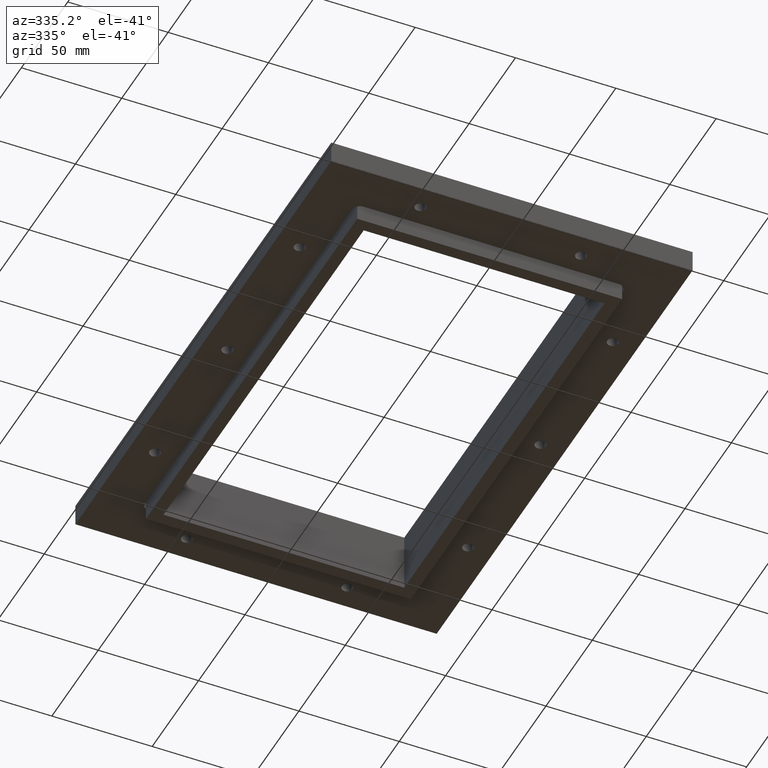
[diagram: clean part render]
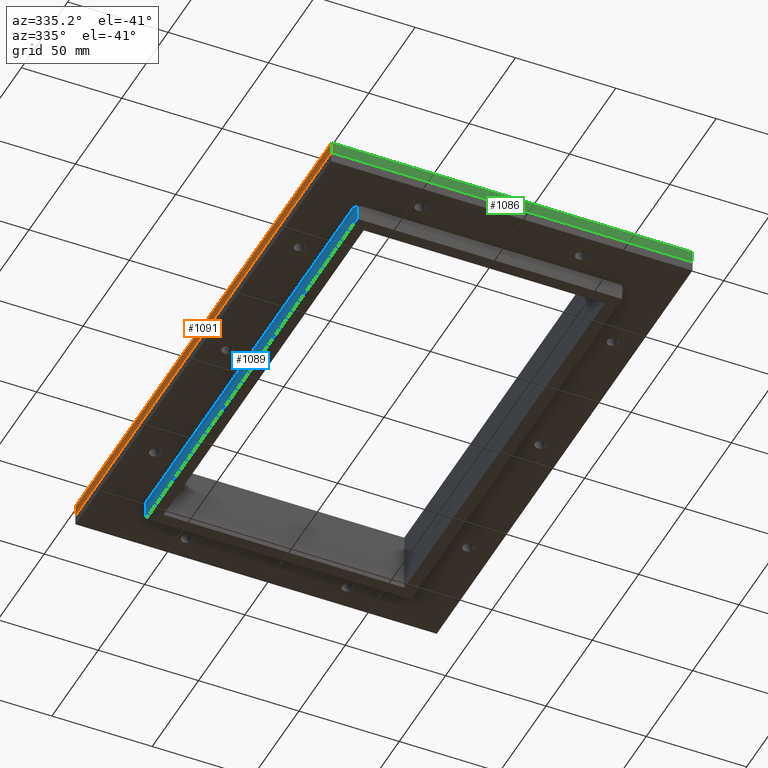
[diagram: same view with three faces highlighted in distinct colors, each labeled with its STEP entity id]
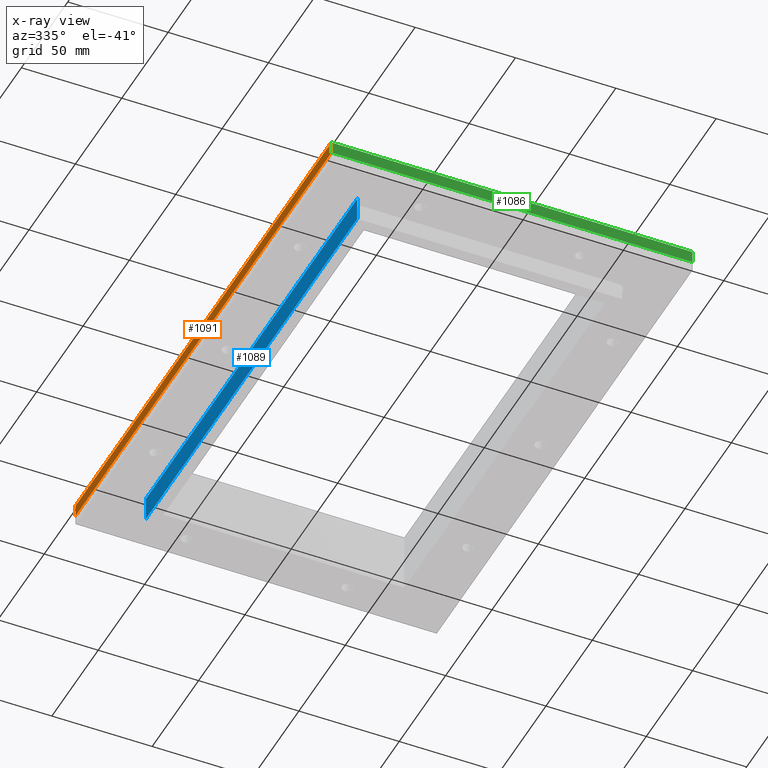
[diagram: x-ray of the same camera — body ghosted, the three highlighted faces saturated]
A machine part, auxiliary view with three faces highlighted in distinct colors.
The next image is the same camera in x-ray (body ghosted, the three faces saturated) — at least one of them is partly hidden behind the body in this view.
Their STEP definitions:

[orange] entity #1091 — the highlighted planar face has unit normal (-1, 0, -0).
#105=PLANE('',#1186);
#145=FACE_OUTER_BOUND('',#223,.T.);
#223=EDGE_LOOP('',(#899,#900,#901,#902));
#291=LINE('',#1628,#387);
#320=LINE('',#1685,#416);
#323=LINE('',#1690,#419);
#325=LINE('',#1693,#421);
#387=VECTOR('',#1328,10.);
#416=VECTOR('',#1377,10.);
#419=VECTOR('',#1382,10.);
#421=VECTOR('',#1386,10.);
#541=VERTEX_POINT('',#1625);
#542=VERTEX_POINT('',#1627);
#560=VERTEX_POINT('',#1684);
#561=VERTEX_POINT('',#1689);
#647=EDGE_CURVE('',#542,#541,#291,.T.);
#676=EDGE_CURVE('',#560,#541,#320,.T.);
#679=EDGE_CURVE('',#561,#560,#323,.T.);
#681=EDGE_CURVE('',#561,#542,#325,.T.);
#899=ORIENTED_EDGE('',*,*,#647,.T.);
#900=ORIENTED_EDGE('',*,*,#676,.F.);
#901=ORIENTED_EDGE('',*,*,#679,.F.);
#902=ORIENTED_EDGE('',*,*,#681,.T.);
#1091=ADVANCED_FACE('',(#145),#105,.T.);
#1186=AXIS2_PLACEMENT_3D('',#1701,#1396,#1397);
#1328=DIRECTION('',(2.96059473233375E-15,-2.96059473233375E-15,-1.));
#1377=DIRECTION('',(1.64477485129653E-16,1.,0.));
#1382=DIRECTION('',(2.96059473233375E-15,2.96059473233375E-15,-1.));
#1386=DIRECTION('',(1.64477485129653E-16,1.,0.));
#1396=DIRECTION('center_axis',(-1.,1.64477485129653E-16,-2.96059473233375E-15));
#1397=DIRECTION('ref_axis',(2.96059473233375E-15,0.,-1.));
#1625=CARTESIAN_POINT('',(-89.9999999999999,138.,-3.));
#1627=CARTESIAN_POINT('',(-90.,138.,3.));
#1628=CARTESIAN_POINT('',(-90.,138.,1.49999999999987));
#1684=CARTESIAN_POINT('',(-90.,-138.,-3.));
#1685=CARTESIAN_POINT('',(-89.9999999999999,108.,-3.));
#1689=CARTESIAN_POINT('',(-90.,-138.,3.));
#1690=CARTESIAN_POINT('',(-90.,-138.,1.49999999999955));
#1693=CARTESIAN_POINT('',(-90.,108.,3.));
#1701=CARTESIAN_POINT('Origin',(-90.,108.,3.));

[blue] entity #1089 — the highlighted planar face has unit normal (-1, 0, 0).
#103=PLANE('',#1184);
#143=FACE_OUTER_BOUND('',#221,.T.);
#221=EDGE_LOOP('',(#891,#892,#893,#894));
#287=LINE('',#1619,#383);
#315=LINE('',#1676,#411);
#318=LINE('',#1681,#414);
#322=LINE('',#1687,#418);
#383=VECTOR('',#1322,10.);
#411=VECTOR('',#1368,10.);
#414=VECTOR('',#1373,10.);
#418=VECTOR('',#1379,10.);
#537=VERTEX_POINT('',#1616);
#538=VERTEX_POINT('',#1618);
#558=VERTEX_POINT('',#1675);
#559=VERTEX_POINT('',#1680);
#643=EDGE_CURVE('',#538,#537,#287,.T.);
#671=EDGE_CURVE('',#558,#537,#315,.T.);
#674=EDGE_CURVE('',#559,#558,#318,.T.);
#678=EDGE_CURVE('',#559,#538,#322,.T.);
#891=ORIENTED_EDGE('',*,*,#643,.T.);
#892=ORIENTED_EDGE('',*,*,#671,.F.);
#893=ORIENTED_EDGE('',*,*,#674,.F.);
#894=ORIENTED_EDGE('',*,*,#678,.T.);
#1089=ADVANCED_FACE('',(#143),#103,.T.);
#1184=AXIS2_PLACEMENT_3D('',#1699,#1392,#1393);
#1322=DIRECTION('',(0.,0.,-1.));
#1368=DIRECTION('',(1.64477485129653E-16,1.,0.));
#1373=DIRECTION('',(0.,0.,-1.));
#1379=DIRECTION('',(1.64477485129653E-16,1.,0.));
#1392=DIRECTION('center_axis',(-1.,1.64477485129653E-16,0.));
#1393=DIRECTION('ref_axis',(0.,0.,-1.));
#1616=CARTESIAN_POINT('',(-65.9999999999999,114.,-15.));
#1618=CARTESIAN_POINT('',(-65.9999999999999,114.,-3.));
#1619=CARTESIAN_POINT('',(-65.9999999999999,114.,-1.5));
#1675=CARTESIAN_POINT('',(-66.,-114.,-15.));
#1676=CARTESIAN_POINT('',(-65.9999999999999,108.,-15.));
#1680=CARTESIAN_POINT('',(-66.,-114.,-3.));
#1681=CARTESIAN_POINT('',(-66.,-114.,-1.5));
#1687=CARTESIAN_POINT('',(-65.9999999999999,108.,-3.));
#1699=CARTESIAN_POINT('Origin',(-65.9999999999999,108.,-3.));

[green] entity #1086 — the highlighted planar face has unit normal (0, -1, -0).
#100=PLANE('',#1181);
#140=FACE_OUTER_BOUND('',#207,.T.);
#207=EDGE_LOOP('',(#865,#866,#867,#868));
#303=LINE('',#1654,#399);
#321=LINE('',#1686,#417);
#323=LINE('',#1690,#419);
#324=LINE('',#1691,#420);
#399=VECTOR('',#1348,10.);
#417=VECTOR('',#1378,10.);
#419=VECTOR('',#1382,10.);
#420=VECTOR('',#1383,10.);
#551=VERTEX_POINT('',#1652);
#552=VERTEX_POINT('',#1653);
#560=VERTEX_POINT('',#1684);
#561=VERTEX_POINT('',#1689);
#659=EDGE_CURVE('',#551,#552,#303,.T.);
#677=EDGE_CURVE('',#560,#552,#321,.T.);
#679=EDGE_CURVE('',#561,#560,#323,.T.);
#680=EDGE_CURVE('',#561,#551,#324,.T.);
#865=ORIENTED_EDGE('',*,*,#679,.T.);
#866=ORIENTED_EDGE('',*,*,#677,.T.);
#867=ORIENTED_EDGE('',*,*,#659,.F.);
#868=ORIENTED_EDGE('',*,*,#680,.F.);
#1086=ADVANCED_FACE('',(#140),#100,.T.);
#1181=AXIS2_PLACEMENT_3D('',#1688,#1380,#1381);
#1348=DIRECTION('',(-2.96059473233375E-15,2.96059473233375E-15,-1.));
#1378=DIRECTION('',(1.,0.,0.));
#1380=DIRECTION('center_axis',(0.,-1.,-2.96059473233375E-15));
#1381=DIRECTION('ref_axis',(2.96059473233375E-15,2.96059473233375E-15,-1.));
#1382=DIRECTION('',(2.96059473233375E-15,2.96059473233375E-15,-1.));
#1383=DIRECTION('',(1.,0.,0.));
#1652=CARTESIAN_POINT('',(90.,-138.,3.));
#1653=CARTESIAN_POINT('',(89.9999999999999,-138.,-3.));
#1654=CARTESIAN_POINT('',(90.,-138.,1.49999999999965));
#1684=CARTESIAN_POINT('',(-90.,-138.,-3.));
#1686=CARTESIAN_POINT('',(-90.,-138.,-3.));
#1688=CARTESIAN_POINT('Origin',(-90.,-138.,3.));
#1689=CARTESIAN_POINT('',(-90.,-138.,3.));
#1690=CARTESIAN_POINT('',(-90.,-138.,1.49999999999955));
#1691=CARTESIAN_POINT('',(-90.,-138.,3.));